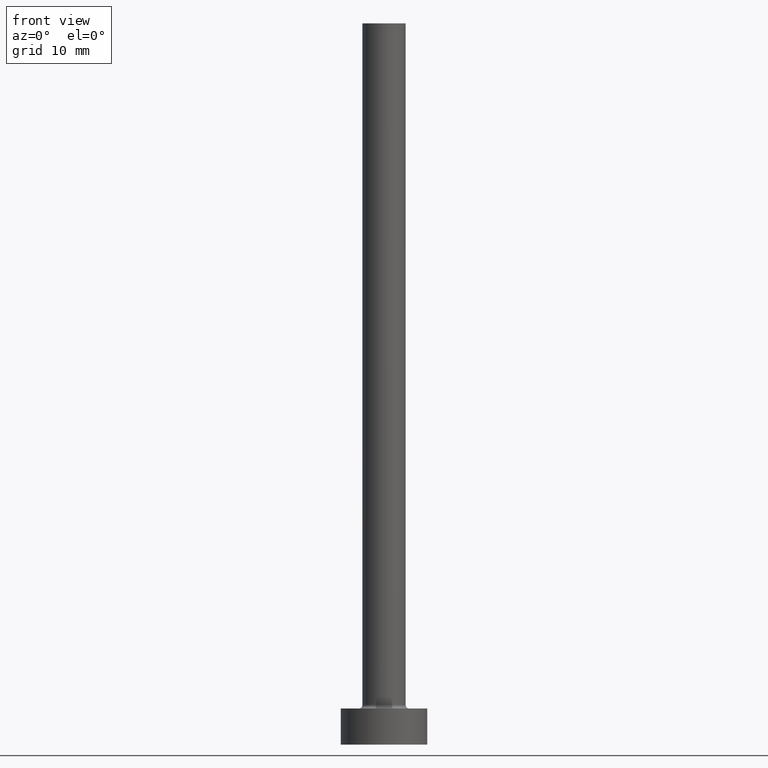
[diagram: clean part render]
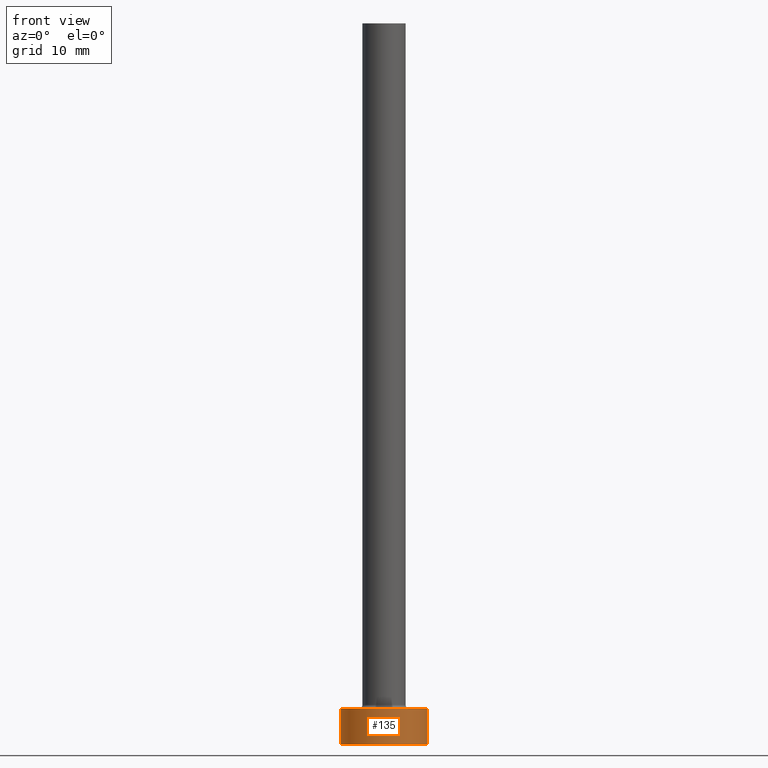
[diagram: same view with one face highlighted and labeled with its STEP entity id]
A machine part, front view. The second image highlights one B-rep face of the part: STEP entity #135.
In plain terms, the highlighted cylindrical surface (partial cylindrical patch) has radius 6 mm, axis along (-0, -0, -1).
Its self-contained STEP definition (entity closure, byte-faithful):
#32 = CARTESIAN_POINT ( 'NONE',  ( 6.000000000000000888, 7.347880794884120722E-16, 5.000000000000000000 ) ) ;
#36 = EDGE_LOOP ( 'NONE', ( #118, #415, #328, #313 ) ) ;
#41 = AXIS2_PLACEMENT_3D ( 'NONE', #242, #275, #136 ) ;
#71 = CARTESIAN_POINT ( 'NONE',  ( -6.000000000000000888, 0.000000000000000000, 0.000000000000000000 ) ) ;
#73 = DIRECTION ( 'NONE',  ( 1.000000000000000000, 0.000000000000000000, 0.000000000000000000 ) ) ;
#101 = DIRECTION ( 'NONE',  ( -0.000000000000000000, -0.000000000000000000, -1.000000000000000000 ) ) ;
#103 = CARTESIAN_POINT ( 'NONE',  ( 0.000000000000000000, 0.000000000000000000, 0.000000000000000000 ) ) ;
#109 = DIRECTION ( 'NONE',  ( -0.000000000000000000, -0.000000000000000000, -1.000000000000000000 ) ) ;
#114 = DIRECTION ( 'NONE',  ( -0.000000000000000000, -0.000000000000000000, -1.000000000000000000 ) ) ;
#118 = ORIENTED_EDGE ( 'NONE', *, *, #339, .F. ) ;
#121 = CYLINDRICAL_SURFACE ( 'NONE', #164, 6.000000000000000888 ) ;
#135 = ADVANCED_FACE ( 'NONE', ( #297 ), #121, .T. ) ;
#136 = DIRECTION ( 'NONE',  ( 1.000000000000000000, 0.000000000000000000, 0.000000000000000000 ) ) ;
#143 = VERTEX_POINT ( 'NONE', #376 ) ;
#157 = DIRECTION ( 'NONE',  ( -1.000000000000000000, 0.000000000000000000, 0.000000000000000000 ) ) ;
#164 = AXIS2_PLACEMENT_3D ( 'NONE', #427, #114, #157 ) ;
#168 = CARTESIAN_POINT ( 'NONE',  ( 6.000000000000000888, 7.347880794884120722E-16, 0.000000000000000000 ) ) ;
#171 = CIRCLE ( 'NONE', #41, 6.000000000000000888 ) ;
#175 = LINE ( 'NONE', #32, #442 ) ;
#180 = CIRCLE ( 'NONE', #298, 6.000000000000000888 ) ;
#202 = VECTOR ( 'NONE', #101, 1000.000000000000000 ) ;
#242 = CARTESIAN_POINT ( 'NONE',  ( 0.000000000000000000, 0.000000000000000000, 5.000000000000000000 ) ) ;
#251 = DIRECTION ( 'NONE',  ( 0.000000000000000000, 0.000000000000000000, 1.000000000000000000 ) ) ;
#275 = DIRECTION ( 'NONE',  ( 0.000000000000000000, 0.000000000000000000, 1.000000000000000000 ) ) ;
#297 = FACE_OUTER_BOUND ( 'NONE', #36, .T. ) ;
#298 = AXIS2_PLACEMENT_3D ( 'NONE', #103, #251, #73 ) ;
#310 = LINE ( 'NONE', #414, #202 ) ;
#313 = ORIENTED_EDGE ( 'NONE', *, *, #454, .T. ) ;
#321 = EDGE_CURVE ( 'NONE', #143, #354, #171, .T. ) ;
#328 = ORIENTED_EDGE ( 'NONE', *, *, #423, .T. ) ;
#339 = EDGE_CURVE ( 'NONE', #354, #426, #175, .T. ) ;
#345 = CARTESIAN_POINT ( 'NONE',  ( 6.000000000000000888, 7.347880794884120722E-16, 5.000000000000000000 ) ) ;
#354 = VERTEX_POINT ( 'NONE', #345 ) ;
#376 = CARTESIAN_POINT ( 'NONE',  ( -6.000000000000000888, 0.000000000000000000, 5.000000000000000000 ) ) ;
#385 = VERTEX_POINT ( 'NONE', #71 ) ;
#414 = CARTESIAN_POINT ( 'NONE',  ( -6.000000000000000888, 0.000000000000000000, 5.000000000000000000 ) ) ;
#415 = ORIENTED_EDGE ( 'NONE', *, *, #321, .F. ) ;
#423 = EDGE_CURVE ( 'NONE', #143, #385, #310, .T. ) ;
#426 = VERTEX_POINT ( 'NONE', #168 ) ;
#427 = CARTESIAN_POINT ( 'NONE',  ( 0.000000000000000000, 0.000000000000000000, 5.000000000000000000 ) ) ;
#442 = VECTOR ( 'NONE', #109, 1000.000000000000000 ) ;
#454 = EDGE_CURVE ( 'NONE', #385, #426, #180, .T. ) ;